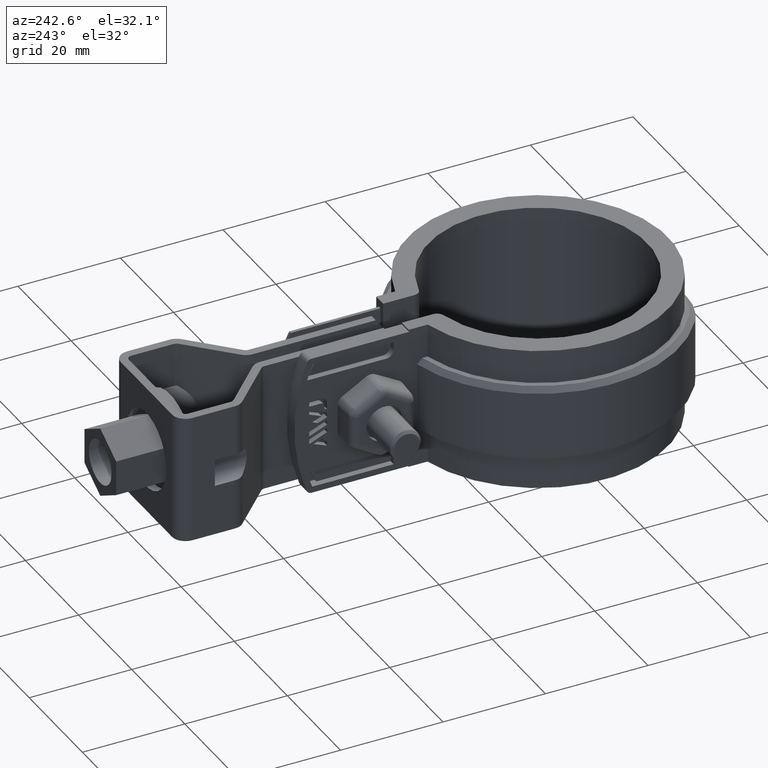
[diagram: clean part render]
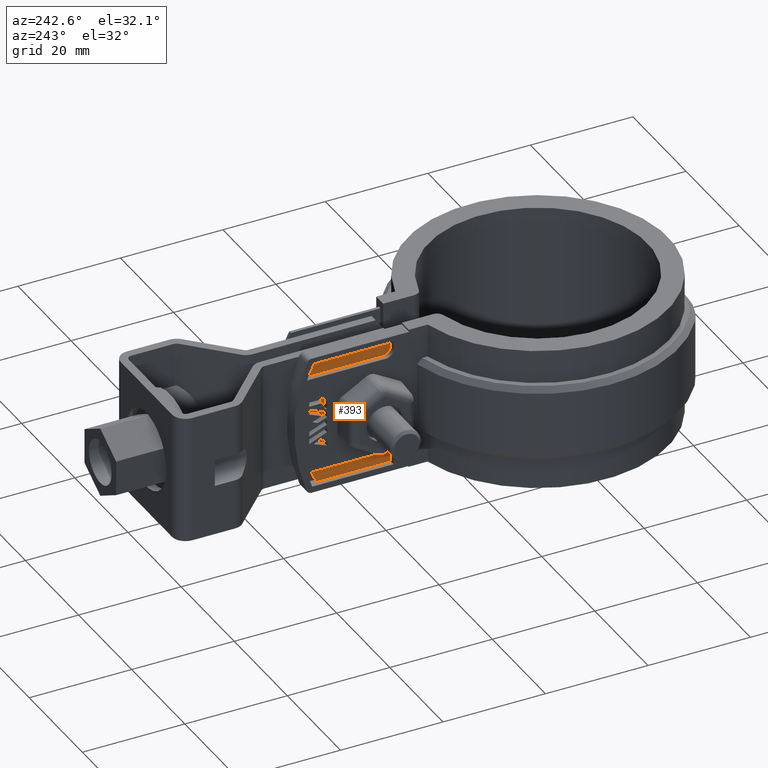
[diagram: same view with one face highlighted and labeled with its STEP entity id]
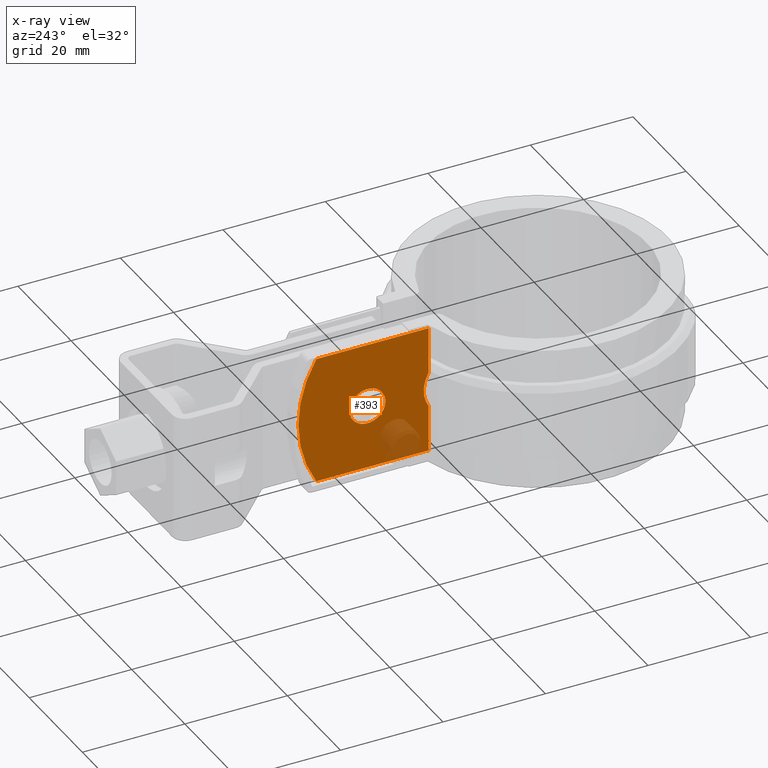
[diagram: x-ray of the same camera — body ghosted, the highlighted face saturated]
A machine part, auxiliary view. The second image highlights one B-rep face of the part: STEP entity #393.
The next image is the same camera in x-ray: the body ghosted, the highlighted face saturated — about 8% of this face is hidden behind the body in this view.
In plain terms, the highlighted planar face has unit normal (1, -0, 0).
Its self-contained STEP definition (entity closure, byte-faithful):
#393 = ADVANCED_FACE( '', ( #772, #773 ), #774, .F. );
#772 = FACE_BOUND( '', #1721, .T. );
#773 = FACE_OUTER_BOUND( '', #1722, .T. );
#774 = PLANE( '', #1723 );
#1721 = EDGE_LOOP( '', ( #3372 ) );
#1722 = EDGE_LOOP( '', ( #3373, #3374, #3375, #3376, #3377, #3378 ) );
#1723 = AXIS2_PLACEMENT_3D( '', #3379, #3380, #3381 );
#3372 = ORIENTED_EDGE( '', *, *, #7136, .F. );
#3373 = ORIENTED_EDGE( '', *, *, #7055, .F. );
#3374 = ORIENTED_EDGE( '', *, *, #7118, .F. );
#3375 = ORIENTED_EDGE( '', *, *, #7027, .F. );
#3376 = ORIENTED_EDGE( '', *, *, #7137, .F. );
#3377 = ORIENTED_EDGE( '', *, *, #7138, .T. );
#3378 = ORIENTED_EDGE( '', *, *, #7139, .F. );
#3379 = CARTESIAN_POINT( '', ( -5.10000000000000, 49.4025110199727, 0.000000000000000 ) );
#3380 = DIRECTION( '', ( 1.00000000000000, -6.12303176911189E-017, 0.000000000000000 ) );
#3381 = DIRECTION( '', ( -6.12303176911189E-017, -1.00000000000000, 0.000000000000000 ) );
#7027 = EDGE_CURVE( '', #8021, #8024, #8025, .T. );
#7055 = EDGE_CURVE( '', #8073, #8075, #8076, .T. );
#7118 = EDGE_CURVE( '', #8024, #8073, #8181, .T. );
#7136 = EDGE_CURVE( '', #8205, #8205, #8206, .F. );
#7137 = EDGE_CURVE( '', #8207, #8021, #8208, .T. );
#7138 = EDGE_CURVE( '', #8207, #8209, #8210, .T. );
#7139 = EDGE_CURVE( '', #8075, #8209, #8211, .T. );
#8021 = VERTEX_POINT( '', #9794 );
#8024 = VERTEX_POINT( '', #9798 );
#8025 = LINE( '', #9799, #9800 );
#8073 = VERTEX_POINT( '', #10012 );
#8075 = VERTEX_POINT( '', #10027 );
#8076 = B_SPLINE_CURVE_WITH_KNOTS( '', 3, ( #10028, #10029, #10030, #10031, #10032, #10033, #10034, #10035, #10036, #10037, #10038, #10039, #10040, #10041 ), .UNSPECIFIED., .F., .F., ( 4, 2, 2, 2, 2, 2, 4 ), ( 1.86835436258807E-017, 0.00177719053585299, 0.00266578580377948, 0.00355438107170597, 0.00533157160755895, 0.00622016687548544, 0.00710876214341192 ), .UNSPECIFIED. );
#8181 = LINE( '', #10619, #10620 );
#8205 = VERTEX_POINT( '', #10682 );
#8206 = CIRCLE( '', #10683, 3.50000000000000 );
#8207 = VERTEX_POINT( '', #10684 );
#8208 = CIRCLE( '', #10685, 24.0000000000000 );
#8209 = VERTEX_POINT( '', #10686 );
#8210 = LINE( '', #10687, #10688 );
#8211 = LINE( '', #10689, #10690 );
#9794 = CARTESIAN_POINT( '', ( -5.09999999999999, 45.8903122685206, 0.000000000000000 ) );
#9798 = CARTESIAN_POINT( '', ( -5.10000000000000, 23.9848389613105, 0.000000000000000 ) );
#9799 = CARTESIAN_POINT( '', ( -5.10000000000000, 49.4025110199727, 0.000000000000000 ) );
#9800 = VECTOR( '', #14415, 1000.00000000000 );
#10012 = CARTESIAN_POINT( '', ( -5.10000000000000, 23.9848389613105, -9.09979672969002 ) );
#10027 = CARTESIAN_POINT( '', ( -5.10000000000000, 23.9848389613105, -15.9002032703100 ) );
#10028 = CARTESIAN_POINT( '', ( -5.10000000000000, 23.9848389613105, -9.09979672969000 ) );
#10029 = CARTESIAN_POINT( '', ( -5.10000000000000, 24.2961853814732, -9.61389898316056 ) );
#10030 = CARTESIAN_POINT( '', ( -5.10000000000000, 24.5298469624291, -10.1585651445327 ) );
#10031 = CARTESIAN_POINT( '', ( -5.10000000000000, 24.7701974598687, -11.0188980167720 ) );
#10032 = CARTESIAN_POINT( '', ( -5.09999999999999, 24.8316671555953, -11.3146966619741 ) );
#10033 = CARTESIAN_POINT( '', ( -5.09999999999999, 24.9129451268947, -11.9043332806813 ) );
#10034 = CARTESIAN_POINT( '', ( -5.09999999999999, 24.9334549103500, -12.1999078346540 ) );
#10035 = CARTESIAN_POINT( '', ( -5.09999999999999, 24.9339731514631, -13.0889236551306 ) );
#10036 = CARTESIAN_POINT( '', ( -5.10000000000001, 24.8507128355694, -13.6908517506101 ) );
#10037 = CARTESIAN_POINT( '', ( -5.10000000000001, 24.6122338313172, -14.5475388842212 ) );
#10038 = CARTESIAN_POINT( '', ( -5.10000000000000, 24.5138632661529, -14.8272778159341 ) );
#10039 = CARTESIAN_POINT( '', ( -5.10000000000000, 24.2783343869586, -15.3747902387917 ) );
#10040 = CARTESIAN_POINT( '', ( -5.10000000000001, 24.1405095982412, -15.6431563924193 ) );
#10041 = CARTESIAN_POINT( '', ( -5.10000000000001, 23.9848389613105, -15.9002032703100 ) );
#10619 = CARTESIAN_POINT( '', ( -5.10000000000000, 23.9848389613105, 0.000000000000000 ) );
#10620 = VECTOR( '', #14492, 1000.00000000000 );
#10682 = CARTESIAN_POINT( '', ( -5.10000000000000, 39.4025110199727, -12.5000000000000 ) );
#10683 = AXIS2_PLACEMENT_3D( '', #14511, #14512, #14513 );
#10684 = CARTESIAN_POINT( '', ( -5.09999999999999, 45.8903122685206, -25.0000000000000 ) );
#10685 = AXIS2_PLACEMENT_3D( '', #14514, #14515, #14516 );
#10686 = CARTESIAN_POINT( '', ( -5.10000000000000, 23.9848389613105, -25.0000000000000 ) );
#10687 = CARTESIAN_POINT( '', ( -5.10000000000000, 49.4025110199727, -25.0000000000000 ) );
#10688 = VECTOR( '', #14517, 1000.00000000000 );
#10689 = CARTESIAN_POINT( '', ( -5.10000000000000, 23.9848389613105, 0.000000000000000 ) );
#10690 = VECTOR( '', #14518, 1000.00000000000 );
#14415 = DIRECTION( '', ( -6.12303176911189E-017, -1.00000000000000, 0.000000000000000 ) );
#14492 = DIRECTION( '', ( 0.000000000000000, 0.000000000000000, -1.00000000000000 ) );
#14511 = CARTESIAN_POINT( '', ( -5.10000000000000, 35.9025110199727, -12.5000000000000 ) );
#14512 = DIRECTION( '', ( 1.00000000000000, -6.12303176911189E-017, 0.000000000000000 ) );
#14513 = DIRECTION( '', ( 6.12303176911189E-017, 1.00000000000000, 0.000000000000000 ) );
#14514 = CARTESIAN_POINT( '', ( -5.09999999999999, 25.4025110199728, -12.5000000000000 ) );
#14515 = DIRECTION( '', ( 1.00000000000000, -6.12303176911189E-017, 0.000000000000000 ) );
#14516 = DIRECTION( '', ( 6.12303176911189E-017, 1.00000000000000, 0.000000000000000 ) );
#14517 = DIRECTION( '', ( -6.12303176911189E-017, -1.00000000000000, 0.000000000000000 ) );
#14518 = DIRECTION( '', ( 0.000000000000000, 0.000000000000000, -1.00000000000000 ) );